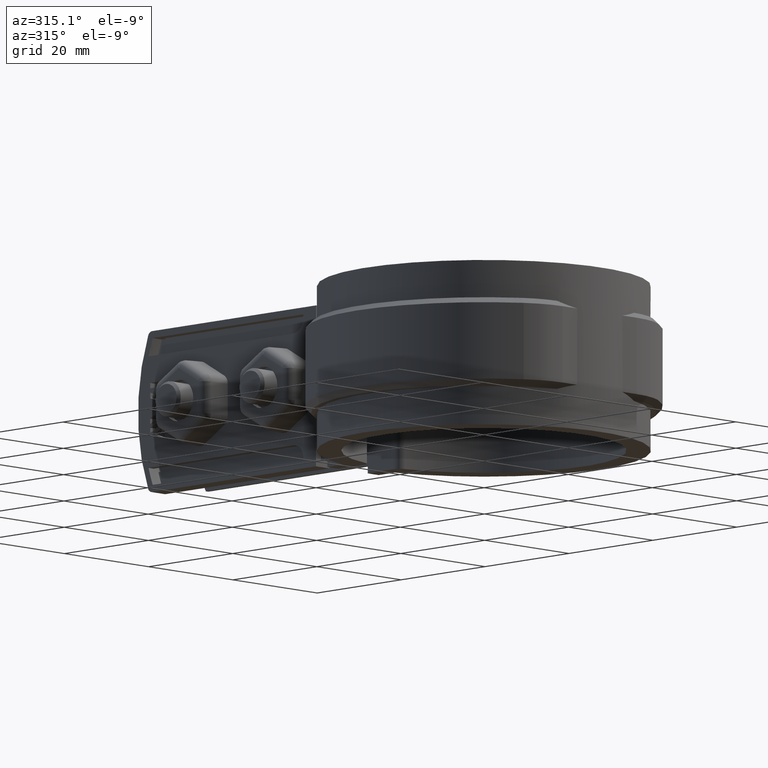
[diagram: clean part render]
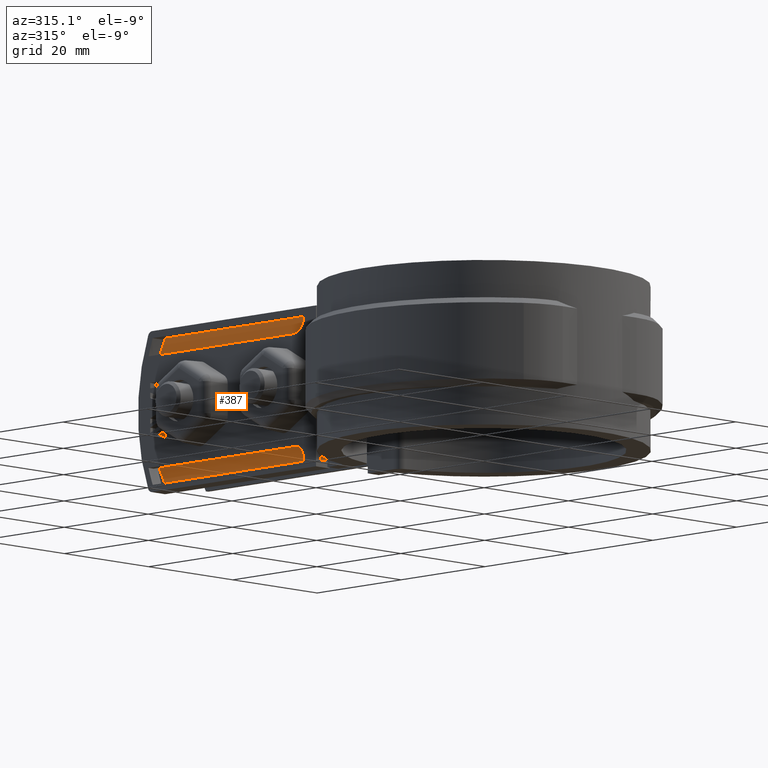
[diagram: same view with one face highlighted and labeled with its STEP entity id]
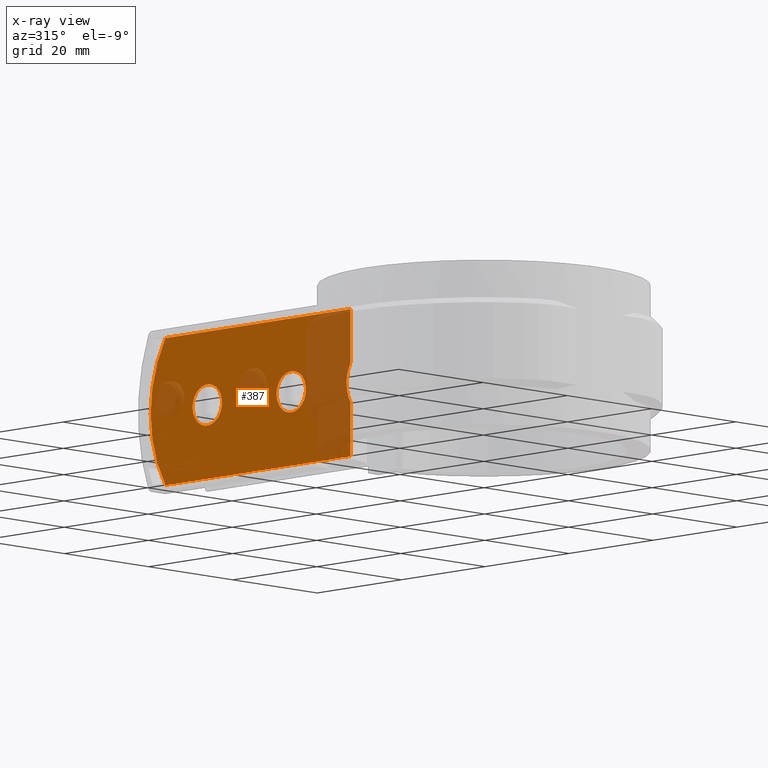
[diagram: x-ray of the same camera — body ghosted, the highlighted face saturated]
A machine part, auxiliary view. The second image highlights one B-rep face of the part: STEP entity #387.
The next image is the same camera in x-ray: the body ghosted, the highlighted face saturated — about 27% of this face is hidden behind the body in this view.
In plain terms, the highlighted planar face has unit normal (1, -0, 0).
Its self-contained STEP definition (entity closure, byte-faithful):
#387 = ADVANCED_FACE( '', ( #774, #775, #776 ), #777, .F. );
#774 = FACE_OUTER_BOUND( '', #1621, .T. );
#775 = FACE_BOUND( '', #1622, .T. );
#776 = FACE_BOUND( '', #1623, .T. );
#777 = PLANE( '', #1624 );
#1621 = EDGE_LOOP( '', ( #3935, #3936, #3937, #3938, #3939, #3940 ) );
#1622 = EDGE_LOOP( '', ( #3941 ) );
#1623 = EDGE_LOOP( '', ( #3942 ) );
#1624 = AXIS2_PLACEMENT_3D( '', #3943, #3944, #3945 );
#3935 = ORIENTED_EDGE( '', *, *, #7491, .F. );
#3936 = ORIENTED_EDGE( '', *, *, #7494, .F. );
#3937 = ORIENTED_EDGE( '', *, *, #7502, .F. );
#3938 = ORIENTED_EDGE( '', *, *, #7499, .F. );
#3939 = ORIENTED_EDGE( '', *, *, #7486, .T. );
#3940 = ORIENTED_EDGE( '', *, *, #7498, .F. );
#3941 = ORIENTED_EDGE( '', *, *, #7503, .F. );
#3942 = ORIENTED_EDGE( '', *, *, #7504, .F. );
#3943 = CARTESIAN_POINT( '', ( -5.10000000000000, 74.2998007960223, 0.000000000000000 ) );
#3944 = DIRECTION( '', ( 1.00000000000000, -6.12303176911189E-017, 0.000000000000000 ) );
#3945 = DIRECTION( '', ( 0.000000000000000, 0.000000000000000, 1.00000000000000 ) );
#7486 = EDGE_CURVE( '', #8551, #8549, #8552, .T. );
#7491 = EDGE_CURVE( '', #8557, #8559, #8560, .T. );
#7494 = EDGE_CURVE( '', #8562, #8557, #8564, .T. );
#7498 = EDGE_CURVE( '', #8559, #8549, #8570, .T. );
#7499 = EDGE_CURVE( '', #8551, #8571, #8572, .T. );
#7502 = EDGE_CURVE( '', #8571, #8562, #8576, .F. );
#7503 = EDGE_CURVE( '', #8577, #8577, #8578, .F. );
#7504 = EDGE_CURVE( '', #8579, #8579, #8580, .F. );
#8549 = VERTEX_POINT( '', #10897 );
#8551 = VERTEX_POINT( '', #10899 );
#8552 = LINE( '', #10900, #10901 );
#8557 = VERTEX_POINT( '', #10908 );
#8559 = VERTEX_POINT( '', #10923 );
#8560 = B_SPLINE_CURVE_WITH_KNOTS( '', 3, ( #10924, #10925, #10926, #10927, #10928, #10929, #10930, #10931, #10932, #10933, #10934, #10935, #10936, #10937, #10938, #10939 ), .UNSPECIFIED., .F., .F., ( 4, 2, 2, 2, 2, 2, 2, 4 ), ( 1.73472347597681E-018, 0.00174299968865409, 0.00261449953298114, 0.00348599937730819, 0.00435749922163524, 0.00522899906596228, 0.00610049891028933, 0.00697199875461638 ), .UNSPECIFIED. );
#8562 = VERTEX_POINT( '', #10952 );
#8564 = LINE( '', #10954, #10955 );
#8570 = LINE( '', #10978, #10979 );
#8571 = VERTEX_POINT( '', #10980 );
#8572 = CIRCLE( '', #10981, 24.0000000000000 );
#8576 = LINE( '', #10986, #10987 );
#8577 = VERTEX_POINT( '', #10988 );
#8578 = CIRCLE( '', #10989, 3.50000000000000 );
#8579 = VERTEX_POINT( '', #10990 );
#8580 = CIRCLE( '', #10991, 3.50000000000000 );
#10897 = CARTESIAN_POINT( '', ( -5.10000000000000, 26.7207784317748, -25.0000000000000 ) );
#10899 = CARTESIAN_POINT( '', ( -5.10000000000000, 70.7876020445702, -25.0000000000000 ) );
#10900 = CARTESIAN_POINT( '', ( -5.10000000000000, 74.2998007960223, -25.0000000000000 ) );
#10901 = VECTOR( '', #13962, 1000.00000000000 );
#10908 = CARTESIAN_POINT( '', ( -5.10000000000000, 26.7207784317748, -9.15908806570543 ) );
#10923 = CARTESIAN_POINT( '', ( -5.10000000000000, 26.7207784317748, -15.8409119342946 ) );
#10924 = CARTESIAN_POINT( '', ( -5.10000000000000, 26.7207784317748, -9.15908806570544 ) );
#10925 = CARTESIAN_POINT( '', ( -5.10000000000000, 27.0205294773263, -9.66664872261633 ) );
#10926 = CARTESIAN_POINT( '', ( -5.10000000000001, 27.2452219664692, -10.2027864551037 ) );
#10927 = CARTESIAN_POINT( '', ( -5.10000000000001, 27.4761585568552, -11.0473893672440 ) );
#10928 = CARTESIAN_POINT( '', ( -5.10000000000000, 27.5352513861619, -11.3376905433881 ) );
#10929 = CARTESIAN_POINT( '', ( -5.10000000000000, 27.6133924014708, -11.9166879478181 ) );
#10930 = CARTESIAN_POINT( '', ( -5.10000000000000, 27.6330516047013, -12.2066986007342 ) );
#10931 = CARTESIAN_POINT( '', ( -5.10000000000000, 27.6333018369987, -12.7877502844698 ) );
#10932 = CARTESIAN_POINT( '', ( -5.10000000000001, 27.6138904822865, -13.0787913781587 ) );
#10933 = CARTESIAN_POINT( '', ( -5.10000000000001, 27.5354151196663, -13.6619193583984 ) );
#10934 = CARTESIAN_POINT( '', ( -5.10000000000001, 27.4768801280401, -13.9492274107866 ) );
#10935 = CARTESIAN_POINT( '', ( -5.10000000000001, 27.3238218400565, -14.5104836649791 ) );
#10936 = CARTESIAN_POINT( '', ( -5.10000000000000, 27.2291784708624, -14.7853029125134 ) );
#10937 = CARTESIAN_POINT( '', ( -5.10000000000000, 27.0029791058853, -15.3231042464679 ) );
#10938 = CARTESIAN_POINT( '', ( -5.10000000000000, 26.8706507873209, -15.5871369688267 ) );
#10939 = CARTESIAN_POINT( '', ( -5.10000000000000, 26.7207784317748, -15.8409119342946 ) );
#10952 = CARTESIAN_POINT( '', ( -5.10000000000000, 26.7207784317748, 0.000000000000000 ) );
#10954 = CARTESIAN_POINT( '', ( -5.10000000000000, 26.7207784317748, 0.000000000000000 ) );
#10955 = VECTOR( '', #13971, 1000.00000000000 );
#10978 = CARTESIAN_POINT( '', ( -5.10000000000000, 26.7207784317748, 0.000000000000000 ) );
#10979 = VECTOR( '', #13972, 1000.00000000000 );
#10980 = CARTESIAN_POINT( '', ( -5.10000000000000, 70.7876020445702, -1.08702828849825E-030 ) );
#10981 = AXIS2_PLACEMENT_3D( '', #13973, #13974, #13975 );
#10986 = CARTESIAN_POINT( '', ( -5.10000000000000, 26.7207784317748, 0.000000000000000 ) );
#10987 = VECTOR( '', #13980, 1000.00000000000 );
#10988 = CARTESIAN_POINT( '', ( -5.09999999999999, 64.2998007960223, -12.5000000000000 ) );
#10989 = AXIS2_PLACEMENT_3D( '', #13981, #13982, #13983 );
#10990 = CARTESIAN_POINT( '', ( -5.09999999999999, 44.2998007960223, -12.5000000000000 ) );
#10991 = AXIS2_PLACEMENT_3D( '', #13984, #13985, #13986 );
#13962 = DIRECTION( '', ( -6.12303176911189E-017, -1.00000000000000, 0.000000000000000 ) );
#13971 = DIRECTION( '', ( 0.000000000000000, 0.000000000000000, -1.00000000000000 ) );
#13972 = DIRECTION( '', ( 0.000000000000000, 0.000000000000000, -1.00000000000000 ) );
#13973 = CARTESIAN_POINT( '', ( -5.09999999999999, 50.2998007960223, -12.5000000000000 ) );
#13974 = DIRECTION( '', ( 1.00000000000000, -6.12303176911189E-017, 0.000000000000000 ) );
#13975 = DIRECTION( '', ( 6.12303176911189E-017, 1.00000000000000, 0.000000000000000 ) );
#13980 = DIRECTION( '', ( 6.12303176911189E-017, 1.00000000000000, 0.000000000000000 ) );
#13981 = CARTESIAN_POINT( '', ( -5.09999999999999, 60.7998007960223, -12.5000000000000 ) );
#13982 = DIRECTION( '', ( 1.00000000000000, -6.12303176911189E-017, 0.000000000000000 ) );
#13983 = DIRECTION( '', ( 6.12303176911189E-017, 1.00000000000000, 0.000000000000000 ) );
#13984 = CARTESIAN_POINT( '', ( -5.09999999999999, 40.7998007960223, -12.5000000000000 ) );
#13985 = DIRECTION( '', ( 1.00000000000000, -6.12303176911189E-017, 0.000000000000000 ) );
#13986 = DIRECTION( '', ( 6.12303176911189E-017, 1.00000000000000, 0.000000000000000 ) );